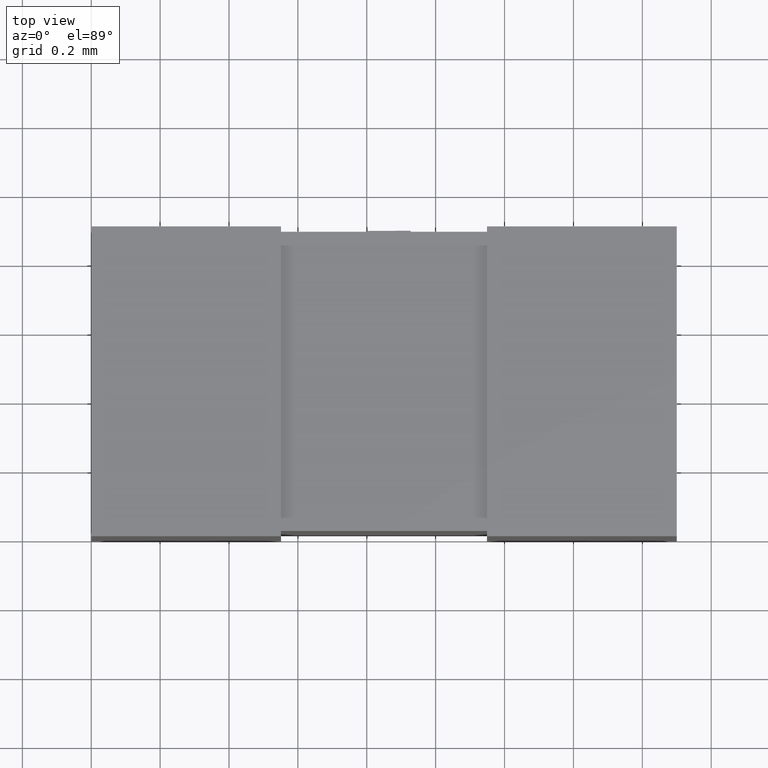
[diagram: clean part render]
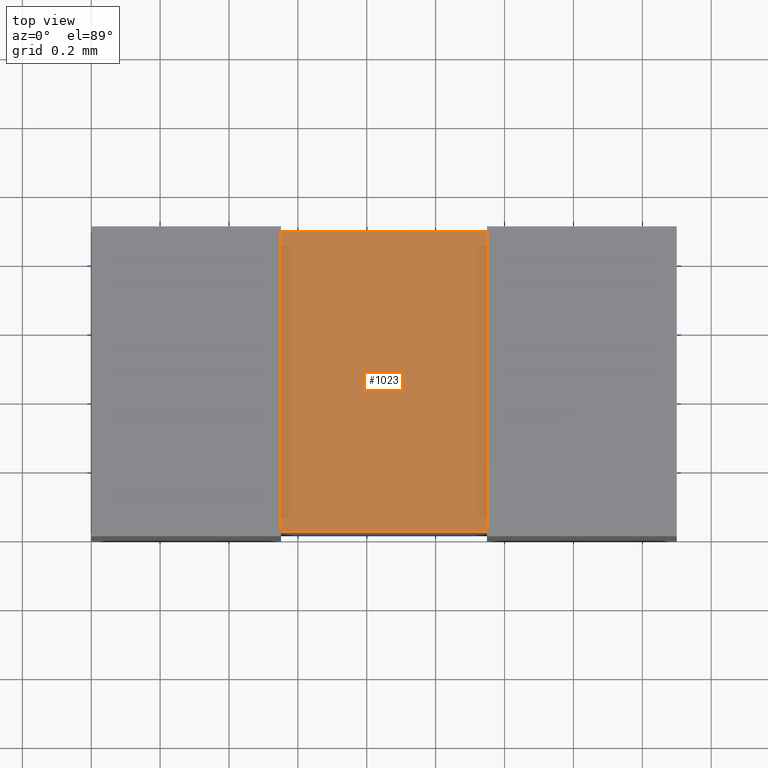
[diagram: same view with one face highlighted and labeled with its STEP entity id]
A machine part, top view. The second image highlights one B-rep face of the part: STEP entity #1023.
In plain terms, the highlighted planar face has unit normal (-0, 0, 1).
Its self-contained STEP definition (entity closure, byte-faithful):
#21 = EDGE_CURVE ( 'NONE', #2106, #925, #193, .T. ) ;
#67 = FACE_OUTER_BOUND ( 'NONE', #1166, .T. ) ;
#193 = LINE ( 'NONE', #335, #1492 ) ;
#248 = LINE ( 'NONE', #783, #2033 ) ;
#286 = ORIENTED_EDGE ( 'NONE', *, *, #2324, .F. ) ;
#335 = CARTESIAN_POINT ( 'NONE',  ( 0.5500000000000001600, 0.01551690000000001400, -0.01551690000000001400 ) ) ;
#569 = ORIENTED_EDGE ( 'NONE', *, *, #21, .T. ) ;
#612 = LINE ( 'NONE', #2160, #2292 ) ;
#678 = CARTESIAN_POINT ( 'NONE',  ( 1.149000000000000200, 0.01551690000000001400, -0.01551690000000001400 ) ) ;
#764 = CARTESIAN_POINT ( 'NONE',  ( 0.5510000000000064800, 0.8844831000000000800, -0.01551689999999990600 ) ) ;
#783 = CARTESIAN_POINT ( 'NONE',  ( 0.5500000000000001600, 0.8844830999999999700, -0.01551690000000001400 ) ) ;
#844 = LINE ( 'NONE', #1688, #2318 ) ;
#915 = CARTESIAN_POINT ( 'NONE',  ( 0.5510000000000064800, 0.01551690000000001400, -0.01551690000000001400 ) ) ;
#925 = VERTEX_POINT ( 'NONE', #678 ) ;
#1023 = ADVANCED_FACE ( 'NONE', ( #67 ), #1100, .T. ) ;
#1100 = PLANE ( 'NONE',  #1699 ) ;
#1110 = ORIENTED_EDGE ( 'NONE', *, *, #2416, .T. ) ;
#1166 = EDGE_LOOP ( 'NONE', ( #569, #1110, #286, #1884 ) ) ;
#1290 = CARTESIAN_POINT ( 'NONE',  ( 0.5500000000000001600, 0.0000000000000000000, -0.01551690000000001400 ) ) ;
#1365 = DIRECTION ( 'NONE',  ( 1.000000000000000000, 0.0000000000000000000, 0.0000000000000000000 ) ) ;
#1483 = DIRECTION ( 'NONE',  ( -0.0000000000000000000, 0.0000000000000000000, 1.000000000000000000 ) ) ;
#1492 = VECTOR ( 'NONE', #1683, 1000.000000000000000 ) ;
#1683 = DIRECTION ( 'NONE',  ( 1.000000000000000000, 0.0000000000000000000, 0.0000000000000000000 ) ) ;
#1688 = CARTESIAN_POINT ( 'NONE',  ( 0.5510000000000064800, 0.8844831000000000800, -0.01551689999999990600 ) ) ;
#1699 = AXIS2_PLACEMENT_3D ( 'NONE', #1290, #1483, #2065 ) ;
#1774 = EDGE_CURVE ( 'NONE', #2269, #2106, #844, .T. ) ;
#1884 = ORIENTED_EDGE ( 'NONE', *, *, #1774, .T. ) ;
#2033 = VECTOR ( 'NONE', #1365, 1000.000000000000000 ) ;
#2047 = VERTEX_POINT ( 'NONE', #2441 ) ;
#2065 = DIRECTION ( 'NONE',  ( 1.000000000000000000, 0.0000000000000000000, 0.0000000000000000000 ) ) ;
#2106 = VERTEX_POINT ( 'NONE', #915 ) ;
#2160 = CARTESIAN_POINT ( 'NONE',  ( 1.149000000000000000, 0.01551690000000001400, -0.01551690000000001400 ) ) ;
#2269 = VERTEX_POINT ( 'NONE', #764 ) ;
#2280 = DIRECTION ( 'NONE',  ( 0.0000000000000000000, -1.000000000000000000, -1.247691995943575700E-016 ) ) ;
#2292 = VECTOR ( 'NONE', #2355, 1000.000000000000000 ) ;
#2318 = VECTOR ( 'NONE', #2280, 1000.000000000000000 ) ;
#2324 = EDGE_CURVE ( 'NONE', #2269, #2047, #248, .T. ) ;
#2355 = DIRECTION ( 'NONE',  ( 0.0000000000000000000, 1.000000000000000000, 0.0000000000000000000 ) ) ;
#2416 = EDGE_CURVE ( 'NONE', #925, #2047, #612, .T. ) ;
#2441 = CARTESIAN_POINT ( 'NONE',  ( 1.149000000000000000, 0.8844830999999999700, -0.01551690000000001400 ) ) ;